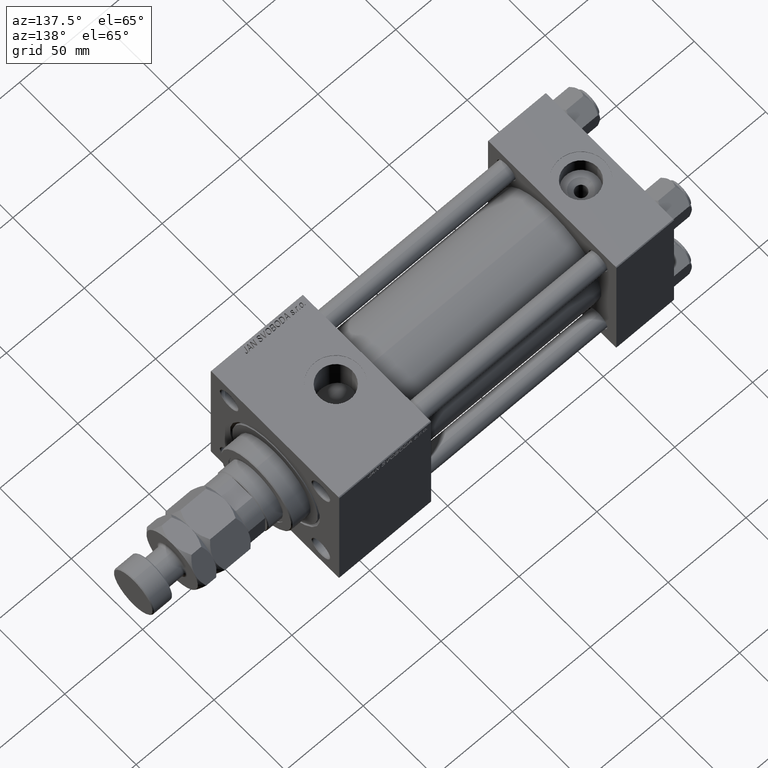
[diagram: clean part render]
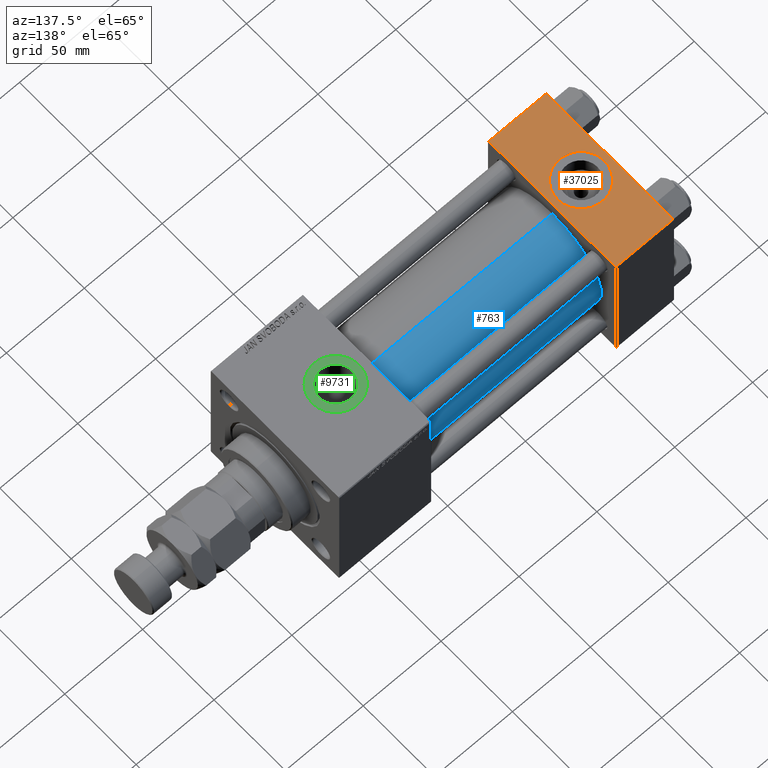
[diagram: same view with three faces highlighted in distinct colors, each labeled with its STEP entity id]
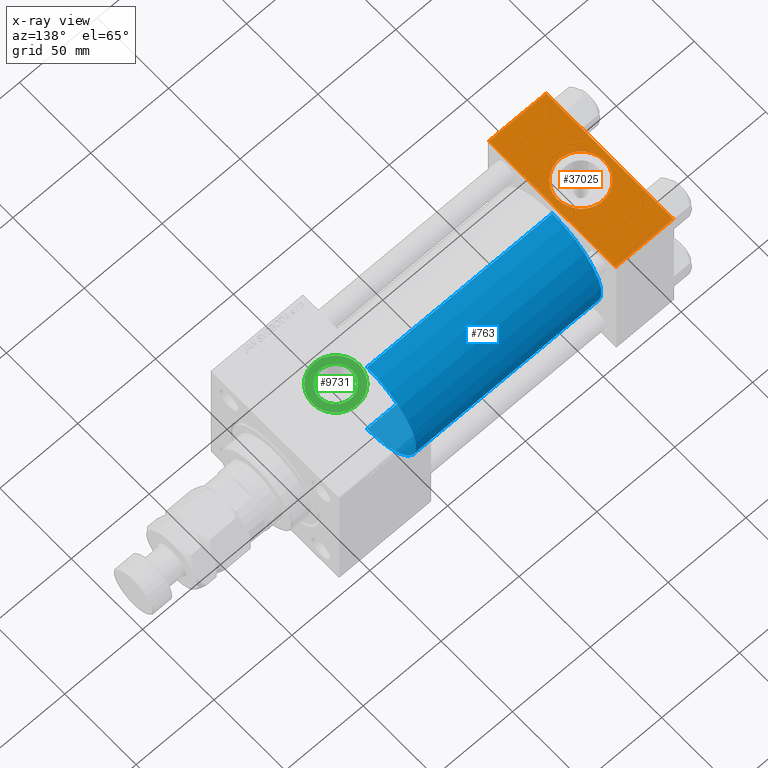
[diagram: x-ray of the same camera — body ghosted, the three highlighted faces saturated]
A machine part, auxiliary view with three faces highlighted in distinct colors.
The next image is the same camera in x-ray (body ghosted, the three faces saturated) — at least one of them is partly hidden behind the body in this view.
Their STEP definitions:

[orange] entity #37025 — the highlighted planar face has unit normal (0, 0, -1).
#862 = FACE_BOUND ( 'NONE', #23225, .T. ) ;
#1030 = VECTOR ( 'NONE', #36219, 1000.000000000000000 ) ;
#1141 = CIRCLE ( 'NONE', #48977, 15.00000000000000355 ) ;
#1496 = DIRECTION ( 'NONE',  ( 1.000000000000000000, 0.000000000000000000, 0.000000000000000000 ) ) ;
#2784 = ORIENTED_EDGE ( 'NONE', *, *, #3359, .F. ) ;
#2810 = VERTEX_POINT ( 'NONE', #15126 ) ;
#2908 = DIRECTION ( 'NONE',  ( 0.000000000000000000, 0.000000000000000000, 1.000000000000000000 ) ) ;
#3296 = AXIS2_PLACEMENT_3D ( 'NONE', #15510, #2908, #6855 ) ;
#3359 = EDGE_CURVE ( 'NONE', #28425, #6234, #51964, .T. ) ;
#5432 = DIRECTION ( 'NONE',  ( 0.000000000000000000, 0.000000000000000000, 1.000000000000000000 ) ) ;
#5993 = CARTESIAN_POINT ( 'NONE',  ( 37.00000000000000000, -44.49999999999998579, 45.00000000000000000 ) ) ;
#6234 = VERTEX_POINT ( 'NONE', #42033 ) ;
#6855 = DIRECTION ( 'NONE',  ( 1.000000000000000000, 0.000000000000000000, 0.000000000000000000 ) ) ;
#9675 = LINE ( 'NONE', #5993, #12113 ) ;
#12113 = VECTOR ( 'NONE', #50376, 1000.000000000000000 ) ;
#13907 = CARTESIAN_POINT ( 'NONE',  ( 0.000000000000000000, 44.99999999999998579, 45.00000000000001421 ) ) ;
#15126 = CARTESIAN_POINT ( 'NONE',  ( 0.000000000000000000, 44.49999999999998579, 45.00000000000001421 ) ) ;
#15226 = EDGE_CURVE ( 'NONE', #19049, #2810, #19933, .T. ) ;
#15510 = CARTESIAN_POINT ( 'NONE',  ( 18.50000000000000000, -8.673617379884038628E-15, 45.00000000000000711 ) ) ;
#17404 = CARTESIAN_POINT ( 'NONE',  ( 37.00000000000000000, 44.99999999999998579, 45.00000000000001421 ) ) ;
#17861 = LINE ( 'NONE', #13907, #30096 ) ;
#18638 = DIRECTION ( 'NONE',  ( 0.000000000000000000, -1.000000000000000000, -1.541976423090495387E-16 ) ) ;
#19049 = VERTEX_POINT ( 'NONE', #39449 ) ;
#19933 = LINE ( 'NONE', #20197, #1030 ) ;
#20197 = CARTESIAN_POINT ( 'NONE',  ( 0.000000000000000000, 44.49999999999998579, 45.00000000000001421 ) ) ;
#20423 = LINE ( 'NONE', #41447, #47706 ) ;
#22725 = EDGE_CURVE ( 'NONE', #6234, #28425, #1141, .T. ) ;
#23225 = EDGE_LOOP ( 'NONE', ( #2784, #44065 ) ) ;
#24561 = EDGE_CURVE ( 'NONE', #26629, #43506, #9675, .T. ) ;
#25026 = DIRECTION ( 'NONE',  ( 0.000000000000000000, 1.541976423090495633E-16, -1.000000000000000000 ) ) ;
#26629 = VERTEX_POINT ( 'NONE', #40428 ) ;
#28425 = VERTEX_POINT ( 'NONE', #40237 ) ;
#28953 = PLANE ( 'NONE',  #37580 ) ;
#30096 = VECTOR ( 'NONE', #18638, 1000.000000000000000 ) ;
#32918 = ORIENTED_EDGE ( 'NONE', *, *, #48935, .T. ) ;
#33693 = FACE_OUTER_BOUND ( 'NONE', #43706, .T. ) ;
#36219 = DIRECTION ( 'NONE',  ( -1.000000000000000000, 0.000000000000000000, 0.000000000000000000 ) ) ;
#36450 = DIRECTION ( 'NONE',  ( 0.000000000000000000, -1.000000000000000000, -1.541976423090495387E-16 ) ) ;
#37025 = ADVANCED_FACE ( 'NONE', ( #862, #33693 ), #28953, .F. ) ;
#37489 = CARTESIAN_POINT ( 'NONE',  ( 18.50000000000000000, -8.673617379884038628E-15, 45.00000000000000711 ) ) ;
#37580 = AXIS2_PLACEMENT_3D ( 'NONE', #17404, #25026, #41576 ) ;
#39449 = CARTESIAN_POINT ( 'NONE',  ( 37.00000000000000000, 44.49999999999998579, 45.00000000000001421 ) ) ;
#40139 = ORIENTED_EDGE ( 'NONE', *, *, #49178, .F. ) ;
#40237 = CARTESIAN_POINT ( 'NONE',  ( 33.50000000000000000, -8.673617379884038628E-15, 45.00000000000000711 ) ) ;
#40428 = CARTESIAN_POINT ( 'NONE',  ( 0.000000000000000000, -44.49999999999995737, 45.00000000000000000 ) ) ;
#41447 = CARTESIAN_POINT ( 'NONE',  ( 37.00000000000000000, 44.99999999999998579, 45.00000000000001421 ) ) ;
#41576 = DIRECTION ( 'NONE',  ( 0.000000000000000000, 1.000000000000000000, 1.541976423090495633E-16 ) ) ;
#42033 = CARTESIAN_POINT ( 'NONE',  ( 3.499999999999997780, -6.836647181163008250E-15, 45.00000000000000711 ) ) ;
#43506 = VERTEX_POINT ( 'NONE', #47202 ) ;
#43706 = EDGE_LOOP ( 'NONE', ( #32918, #49320, #40139, #49136 ) ) ;
#44065 = ORIENTED_EDGE ( 'NONE', *, *, #22725, .F. ) ;
#47202 = CARTESIAN_POINT ( 'NONE',  ( 37.00000000000000000, -44.49999999999995737, 45.00000000000000000 ) ) ;
#47706 = VECTOR ( 'NONE', #36450, 1000.000000000000000 ) ;
#48935 = EDGE_CURVE ( 'NONE', #2810, #26629, #17861, .T. ) ;
#48977 = AXIS2_PLACEMENT_3D ( 'NONE', #37489, #5432, #1496 ) ;
#49136 = ORIENTED_EDGE ( 'NONE', *, *, #15226, .T. ) ;
#49178 = EDGE_CURVE ( 'NONE', #19049, #43506, #20423, .T. ) ;
#49320 = ORIENTED_EDGE ( 'NONE', *, *, #24561, .T. ) ;
#50376 = DIRECTION ( 'NONE',  ( 1.000000000000000000, 0.000000000000000000, 0.000000000000000000 ) ) ;
#51964 = CIRCLE ( 'NONE', #3296, 15.00000000000000355 ) ;

[blue] entity #763 — the highlighted cylindrical surface (partial cylindrical patch) has radius 34.5 mm, axis along (-1, -0, -0).
#763 = ADVANCED_FACE ( 'NONE', ( #48727 ), #51634, .T. ) ;
#902 = VERTEX_POINT ( 'NONE', #43645 ) ;
#1873 = LINE ( 'NONE', #9502, #2254 ) ;
#2105 = EDGE_CURVE ( 'NONE', #8645, #902, #49420, .T. ) ;
#2254 = VECTOR ( 'NONE', #33925, 1000.000000000000000 ) ;
#3312 = VERTEX_POINT ( 'NONE', #33676 ) ;
#3530 = AXIS2_PLACEMENT_3D ( 'NONE', #21045, #25508, #17360 ) ;
#3680 = ORIENTED_EDGE ( 'NONE', *, *, #15063, .T. ) ;
#4317 = ORIENTED_EDGE ( 'NONE', *, *, #12989, .F. ) ;
#6881 = CIRCLE ( 'NONE', #3530, 34.50000000000000000 ) ;
#8310 = ORIENTED_EDGE ( 'NONE', *, *, #2105, .F. ) ;
#8645 = VERTEX_POINT ( 'NONE', #49038 ) ;
#9502 = CARTESIAN_POINT ( 'NONE',  ( 156.0000000000000000, 1.622946243093158675E-15, -34.50000000000000000 ) ) ;
#10253 = CARTESIAN_POINT ( 'NONE',  ( 156.0000000000000000, -2.602085213965210642E-15, 34.50000000000000000 ) ) ;
#12989 = EDGE_CURVE ( 'NONE', #902, #3312, #38615, .T. ) ;
#13965 = EDGE_LOOP ( 'NONE', ( #8310, #29836, #3680, #4317 ) ) ;
#14187 = DIRECTION ( 'NONE',  ( -1.000000000000000000, -0.000000000000000000, -0.000000000000000000 ) ) ;
#15063 = EDGE_CURVE ( 'NONE', #30828, #3312, #6881, .T. ) ;
#15631 = CARTESIAN_POINT ( 'NONE',  ( 156.0000000000000000, -2.602085213965210642E-15, 0.000000000000000000 ) ) ;
#15663 = DIRECTION ( 'NONE',  ( -1.000000000000000000, -0.000000000000000000, -0.000000000000000000 ) ) ;
#17360 = DIRECTION ( 'NONE',  ( 0.000000000000000000, 0.000000000000000000, 1.000000000000000000 ) ) ;
#21045 = CARTESIAN_POINT ( 'NONE',  ( 37.00000000000000711, -2.602085213965210642E-15, 0.000000000000000000 ) ) ;
#24052 = DIRECTION ( 'NONE',  ( 0.000000000000000000, 0.000000000000000000, 1.000000000000000000 ) ) ;
#25508 = DIRECTION ( 'NONE',  ( 1.000000000000000000, -0.000000000000000000, 0.000000000000000000 ) ) ;
#29291 = AXIS2_PLACEMENT_3D ( 'NONE', #15631, #35083, #47671 ) ;
#29836 = ORIENTED_EDGE ( 'NONE', *, *, #33604, .T. ) ;
#30828 = VERTEX_POINT ( 'NONE', #42385 ) ;
#33604 = EDGE_CURVE ( 'NONE', #8645, #30828, #1873, .T. ) ;
#33676 = CARTESIAN_POINT ( 'NONE',  ( 37.00000000000000711, -2.602085213965210642E-15, 34.50000000000000000 ) ) ;
#33925 = DIRECTION ( 'NONE',  ( -1.000000000000000000, -0.000000000000000000, -0.000000000000000000 ) ) ;
#35083 = DIRECTION ( 'NONE',  ( 1.000000000000000000, 0.000000000000000000, 0.000000000000000000 ) ) ;
#38615 = LINE ( 'NONE', #10253, #48754 ) ;
#42385 = CARTESIAN_POINT ( 'NONE',  ( 37.00000000000000711, 1.622946243093158675E-15, -34.50000000000000000 ) ) ;
#43645 = CARTESIAN_POINT ( 'NONE',  ( 156.0000000000000000, -2.602085213965210642E-15, 34.50000000000000000 ) ) ;
#47671 = DIRECTION ( 'NONE',  ( 0.000000000000000000, 0.000000000000000000, -1.000000000000000000 ) ) ;
#48457 = CARTESIAN_POINT ( 'NONE',  ( 156.0000000000000000, -2.602085213965210642E-15, 0.000000000000000000 ) ) ;
#48727 = FACE_OUTER_BOUND ( 'NONE', #13965, .T. ) ;
#48754 = VECTOR ( 'NONE', #14187, 1000.000000000000000 ) ;
#49038 = CARTESIAN_POINT ( 'NONE',  ( 156.0000000000000000, 1.622946243093158675E-15, -34.50000000000000000 ) ) ;
#49420 = CIRCLE ( 'NONE', #29291, 34.50000000000000000 ) ;
#49499 = AXIS2_PLACEMENT_3D ( 'NONE', #48457, #15663, #24052 ) ;
#51634 = CYLINDRICAL_SURFACE ( 'NONE', #49499, 34.50000000000000000 ) ;

[green] entity #9731 — the highlighted planar face has unit normal (0, 0, 1).
#63 = DIRECTION ( 'NONE',  ( 0.000000000000000000, 0.000000000000000000, 1.000000000000000000 ) ) ;
#143 = EDGE_LOOP ( 'NONE', ( #14788, #15148 ) ) ;
#163 = PLANE ( 'NONE',  #16919 ) ;
#410 = FACE_BOUND ( 'NONE', #11936, .T. ) ;
#609 = CARTESIAN_POINT ( 'NONE',  ( 176.0000000000000000, -6.938893903907227589E-15, 44.79999999999999005 ) ) ;
#1468 = CARTESIAN_POINT ( 'NONE',  ( 176.0000000000000000, -6.938893903907227589E-15, 44.79999999999999005 ) ) ;
#3112 = CIRCLE ( 'NONE', #9835, 15.00000000000001421 ) ;
#3975 = CARTESIAN_POINT ( 'NONE',  ( 176.0000000000000000, -6.938893903907227589E-15, 44.79999999999999005 ) ) ;
#4869 = DIRECTION ( 'NONE',  ( 1.000000000000000000, 0.000000000000000000, 0.000000000000000000 ) ) ;
#6843 = CIRCLE ( 'NONE', #8513, 10.47999999999998977 ) ;
#8513 = AXIS2_PLACEMENT_3D ( 'NONE', #1468, #13548, #4869 ) ;
#9594 = CARTESIAN_POINT ( 'NONE',  ( 191.0000000000000000, -6.938893903907227589E-15, 44.79999999999999005 ) ) ;
#9731 = ADVANCED_FACE ( 'NONE', ( #410, #36139 ), #163, .T. ) ;
#9835 = AXIS2_PLACEMENT_3D ( 'NONE', #3975, #63, #32347 ) ;
#10436 = CARTESIAN_POINT ( 'NONE',  ( 186.4799999999999898, -5.655464058400803678E-15, 44.79999999999999005 ) ) ;
#11936 = EDGE_LOOP ( 'NONE', ( #21822, #38188 ) ) ;
#13548 = DIRECTION ( 'NONE',  ( -0.000000000000000000, -0.000000000000000000, -1.000000000000000000 ) ) ;
#14557 = EDGE_CURVE ( 'NONE', #39194, #50230, #6843, .T. ) ;
#14788 = ORIENTED_EDGE ( 'NONE', *, *, #31698, .T. ) ;
#15018 = CIRCLE ( 'NONE', #43594, 15.00000000000001421 ) ;
#15148 = ORIENTED_EDGE ( 'NONE', *, *, #50578, .T. ) ;
#16435 = DIRECTION ( 'NONE',  ( 1.000000000000000000, 0.000000000000000000, -0.000000000000000000 ) ) ;
#16919 = AXIS2_PLACEMENT_3D ( 'NONE', #32193, #48210, #16435 ) ;
#21822 = ORIENTED_EDGE ( 'NONE', *, *, #14557, .T. ) ;
#22213 = DIRECTION ( 'NONE',  ( -0.000000000000000000, -0.000000000000000000, -1.000000000000000000 ) ) ;
#22565 = VERTEX_POINT ( 'NONE', #23595 ) ;
#23012 = CIRCLE ( 'NONE', #26382, 10.47999999999998977 ) ;
#23595 = CARTESIAN_POINT ( 'NONE',  ( 160.9999999999999716, -5.101923705186193267E-15, 44.79999999999999005 ) ) ;
#23935 = EDGE_CURVE ( 'NONE', #50230, #39194, #23012, .T. ) ;
#26382 = AXIS2_PLACEMENT_3D ( 'NONE', #32198, #22213, #37981 ) ;
#31698 = EDGE_CURVE ( 'NONE', #38394, #22565, #3112, .T. ) ;
#32193 = CARTESIAN_POINT ( 'NONE',  ( 176.0000000000000000, -6.938893903907227589E-15, 44.79999999999999005 ) ) ;
#32198 = CARTESIAN_POINT ( 'NONE',  ( 176.0000000000000000, -6.938893903907227589E-15, 44.79999999999999005 ) ) ;
#32347 = DIRECTION ( 'NONE',  ( 1.000000000000000000, 0.000000000000000000, 0.000000000000000000 ) ) ;
#32381 = DIRECTION ( 'NONE',  ( 1.000000000000000000, 0.000000000000000000, 0.000000000000000000 ) ) ;
#34286 = CARTESIAN_POINT ( 'NONE',  ( 165.5200000000000102, -6.938893903907227589E-15, 44.79999999999999005 ) ) ;
#36139 = FACE_OUTER_BOUND ( 'NONE', #143, .T. ) ;
#36588 = DIRECTION ( 'NONE',  ( 0.000000000000000000, 0.000000000000000000, 1.000000000000000000 ) ) ;
#37981 = DIRECTION ( 'NONE',  ( 1.000000000000000000, 0.000000000000000000, 0.000000000000000000 ) ) ;
#38188 = ORIENTED_EDGE ( 'NONE', *, *, #23935, .T. ) ;
#38394 = VERTEX_POINT ( 'NONE', #9594 ) ;
#39194 = VERTEX_POINT ( 'NONE', #34286 ) ;
#43594 = AXIS2_PLACEMENT_3D ( 'NONE', #609, #36588, #32381 ) ;
#48210 = DIRECTION ( 'NONE',  ( 0.000000000000000000, 0.000000000000000000, 1.000000000000000000 ) ) ;
#50230 = VERTEX_POINT ( 'NONE', #10436 ) ;
#50578 = EDGE_CURVE ( 'NONE', #22565, #38394, #15018, .T. ) ;